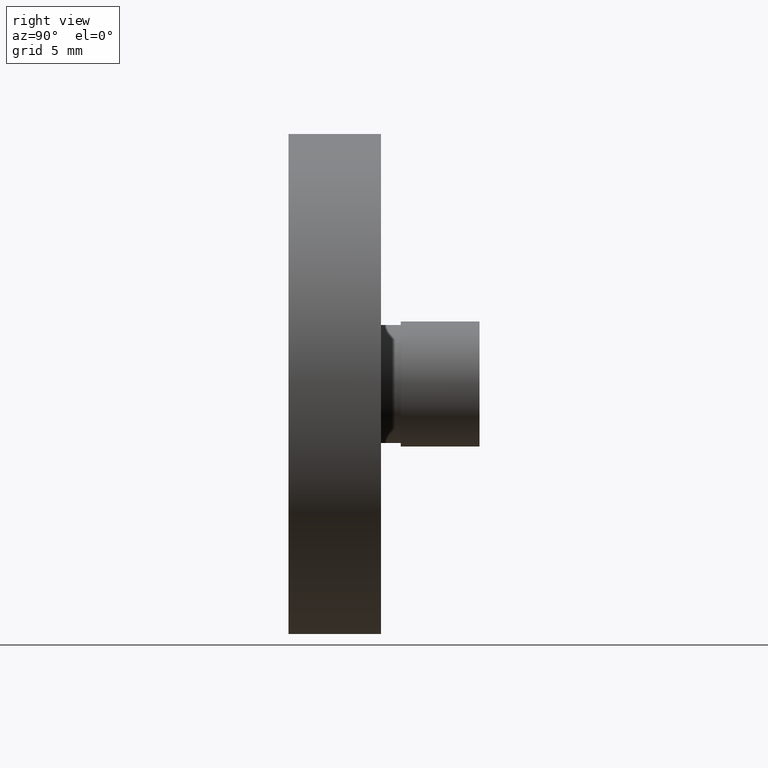
[diagram: clean part render]
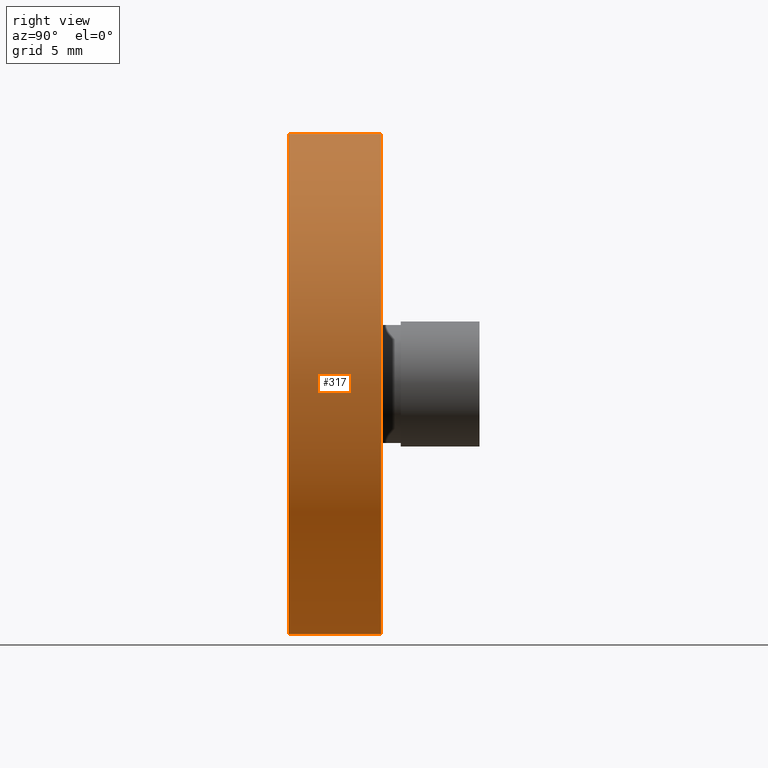
[diagram: same view with one face highlighted and labeled with its STEP entity id]
A machine part, right view. The second image highlights one B-rep face of the part: STEP entity #317.
In plain terms, the highlighted cylindrical surface (partial cylindrical patch) has radius 12.7 mm, axis along (-0, 1, -0).
Its self-contained STEP definition (entity closure, byte-faithful):
#5 = CARTESIAN_POINT ( 'NONE',  ( 0.0000000000000000000, 4.700000000000002800, 0.0000000000000000000 ) ) ;
#16 = DIRECTION ( 'NONE',  ( 0.0000000000000000000, 0.0000000000000000000, 1.000000000000000000 ) ) ;
#48 = DIRECTION ( 'NONE',  ( 0.0000000000000000000, 0.0000000000000000000, 1.000000000000000000 ) ) ;
#55 = ORIENTED_EDGE ( 'NONE', *, *, #256, .F. ) ;
#57 = LINE ( 'NONE', #353, #209 ) ;
#63 = EDGE_CURVE ( 'NONE', #215, #105, #323, .T. ) ;
#71 = EDGE_CURVE ( 'NONE', #319, #105, #57, .T. ) ;
#93 = FACE_OUTER_BOUND ( 'NONE', #409, .T. ) ;
#101 = CARTESIAN_POINT ( 'NONE',  ( 1.555301434917139000E-015, 4.700000000000002800, -12.70000000000000500 ) ) ;
#105 = VERTEX_POINT ( 'NONE', #101 ) ;
#106 = DIRECTION ( 'NONE',  ( 0.0000000000000000000, 0.0000000000000000000, 1.000000000000000000 ) ) ;
#119 = CARTESIAN_POINT ( 'NONE',  ( 0.0000000000000000000, 0.0000000000000000000, 12.70000000000000500 ) ) ;
#139 = LINE ( 'NONE', #141, #401 ) ;
#141 = CARTESIAN_POINT ( 'NONE',  ( 0.0000000000000000000, 41.06170623995065900, 12.70000000000000500 ) ) ;
#142 = CARTESIAN_POINT ( 'NONE',  ( 1.555301434917139000E-015, 0.0000000000000000000, -12.70000000000000500 ) ) ;
#146 = ORIENTED_EDGE ( 'NONE', *, *, #71, .T. ) ;
#175 = ORIENTED_EDGE ( 'NONE', *, *, #63, .F. ) ;
#179 = CARTESIAN_POINT ( 'NONE',  ( 0.0000000000000000000, 0.0000000000000000000, 0.0000000000000000000 ) ) ;
#208 = CARTESIAN_POINT ( 'NONE',  ( 0.0000000000000000000, 41.06170623995065900, 0.0000000000000000000 ) ) ;
#209 = VECTOR ( 'NONE', #352, 1000.000000000000000 ) ;
#214 = CIRCLE ( 'NONE', #264, 12.70000000000000500 ) ;
#215 = VERTEX_POINT ( 'NONE', #385 ) ;
#225 = AXIS2_PLACEMENT_3D ( 'NONE', #5, #265, #106 ) ;
#245 = ORIENTED_EDGE ( 'NONE', *, *, #370, .T. ) ;
#251 = DIRECTION ( 'NONE',  ( -0.0000000000000000000, 1.000000000000000000, -0.0000000000000000000 ) ) ;
#255 = CYLINDRICAL_SURFACE ( 'NONE', #283, 12.70000000000000500 ) ;
#256 = EDGE_CURVE ( 'NONE', #284, #215, #139, .T. ) ;
#264 = AXIS2_PLACEMENT_3D ( 'NONE', #179, #251, #48 ) ;
#265 = DIRECTION ( 'NONE',  ( -0.0000000000000000000, 1.000000000000000000, -0.0000000000000000000 ) ) ;
#283 = AXIS2_PLACEMENT_3D ( 'NONE', #208, #366, #16 ) ;
#284 = VERTEX_POINT ( 'NONE', #119 ) ;
#317 = ADVANCED_FACE ( 'NONE', ( #93 ), #255, .T. ) ;
#319 = VERTEX_POINT ( 'NONE', #142 ) ;
#323 = CIRCLE ( 'NONE', #225, 12.70000000000000500 ) ;
#352 = DIRECTION ( 'NONE',  ( -0.0000000000000000000, 1.000000000000000000, -0.0000000000000000000 ) ) ;
#353 = CARTESIAN_POINT ( 'NONE',  ( 1.555301434917139000E-015, 41.06170623995065900, -12.70000000000000500 ) ) ;
#360 = DIRECTION ( 'NONE',  ( -0.0000000000000000000, 1.000000000000000000, -0.0000000000000000000 ) ) ;
#366 = DIRECTION ( 'NONE',  ( -0.0000000000000000000, 1.000000000000000000, -0.0000000000000000000 ) ) ;
#370 = EDGE_CURVE ( 'NONE', #284, #319, #214, .T. ) ;
#385 = CARTESIAN_POINT ( 'NONE',  ( 0.0000000000000000000, 4.700000000000002800, 12.70000000000000500 ) ) ;
#401 = VECTOR ( 'NONE', #360, 1000.000000000000000 ) ;
#409 = EDGE_LOOP ( 'NONE', ( #245, #146, #175, #55 ) ) ;